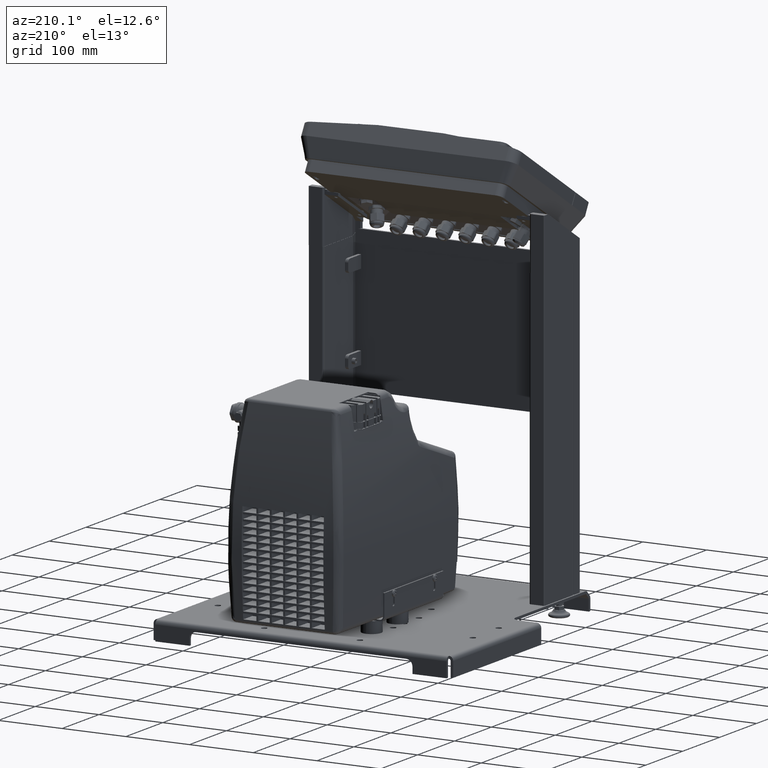
[diagram: clean part render]
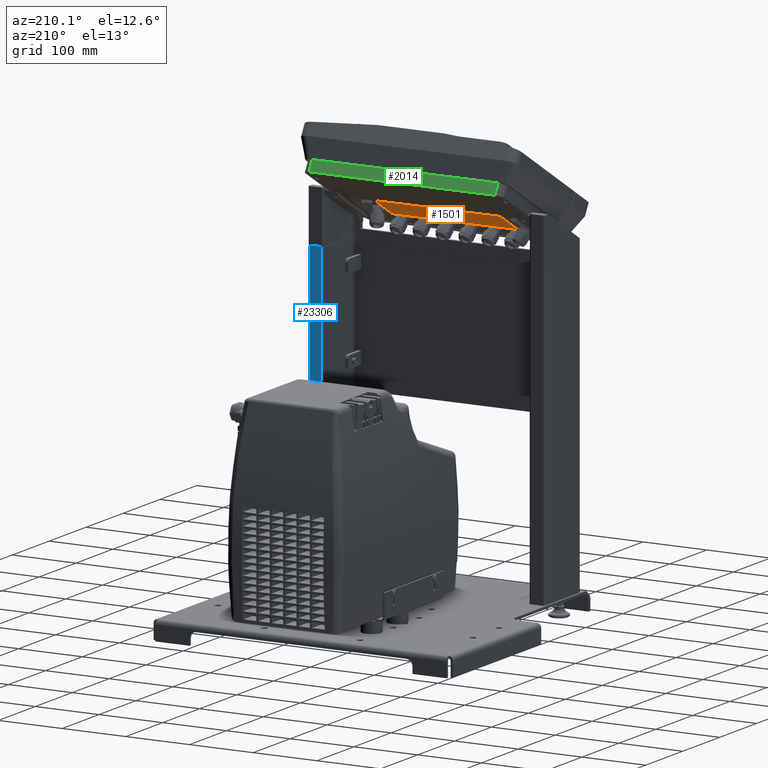
[diagram: same view with three faces highlighted in distinct colors, each labeled with its STEP entity id]
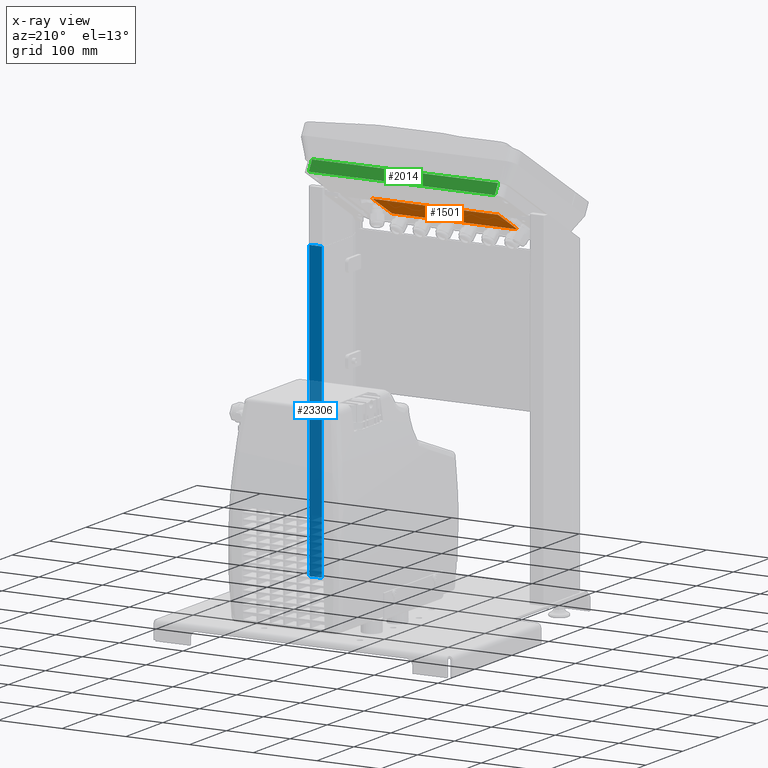
[diagram: x-ray of the same camera — body ghosted, the three highlighted faces saturated]
A machine part, auxiliary view with three faces highlighted in distinct colors.
The next image is the same camera in x-ray (body ghosted, the three faces saturated) — at least one of them is partly hidden behind the body in this view.
Their STEP definitions:

[orange] entity #1501 — the highlighted planar face has unit normal (-0, -0.5, 0.866).
#1412=CARTESIAN_POINT('',(-98.456019271975549,-137.54090868399817,559.35854279548505));
#1413=VERTEX_POINT('',#1412);
#1420=CARTESIAN_POINT('',(-98.456019271975549,-191.23448371863333,528.35854279548482));
#1421=VERTEX_POINT('',#1420);
#1422=CARTESIAN_POINT('',(-98.456019271975549,-191.23448371863333,528.35854279548482));
#1423=DIRECTION('',(1.375244E-015,0.866025403784438,0.500000000000001));
#1424=VECTOR('',#1423,62.000000000000071);
#1425=LINE('',#1422,#1424);
#1426=EDGE_CURVE('',#1421,#1413,#1425,.T.);
#1444=CARTESIAN_POINT('',(98.543980728024451,-191.23448371863356,528.35854279548471));
#1445=VERTEX_POINT('',#1444);
#1446=CARTESIAN_POINT('',(98.543980728024451,-191.23448371863356,528.35854279548471));
#1447=DIRECTION('',(-1.0,0.0,0.0));
#1448=VECTOR('',#1447,197.0);
#1449=LINE('',#1446,#1448);
#1450=EDGE_CURVE('',#1445,#1421,#1449,.T.);
#1468=CARTESIAN_POINT('',(98.543980728024451,-137.54090868399817,559.35854279548505));
#1469=VERTEX_POINT('',#1468);
#1470=CARTESIAN_POINT('',(98.543980728024451,-137.54090868399817,559.35854279548505));
#1471=DIRECTION('',(-4.584147E-016,-0.866025403784438,-0.500000000000001));
#1472=VECTOR('',#1471,62.000000000000327);
#1473=LINE('',#1470,#1472);
#1474=EDGE_CURVE('',#1469,#1445,#1473,.T.);
#1485=CARTESIAN_POINT('',(0.043980728024455,-164.38769620131598,543.85854279548471));
#1486=DIRECTION('',(-2.897450E-016,-0.500000000000001,0.866025403784438));
#1487=DIRECTION('',(-1.0,0.0,0.0));
#1488=AXIS2_PLACEMENT_3D('',#1485,#1486,#1487);
#1489=PLANE('',#1488);
#1490=CARTESIAN_POINT('',(98.543980728024451,-137.54090868399817,559.35854279548505));
#1491=DIRECTION('',(-1.0,0.0,0.0));
#1492=VECTOR('',#1491,197.0);
#1493=LINE('',#1490,#1492);
#1494=EDGE_CURVE('',#1469,#1413,#1493,.T.);
#1495=ORIENTED_EDGE('',*,*,#1494,.F.);
#1496=ORIENTED_EDGE('',*,*,#1474,.T.);
#1497=ORIENTED_EDGE('',*,*,#1450,.T.);
#1498=ORIENTED_EDGE('',*,*,#1426,.T.);
#1499=EDGE_LOOP('',(#1495,#1496,#1497,#1498));
#1500=FACE_OUTER_BOUND('',#1499,.T.);
#1501=ADVANCED_FACE('',(#1500),#1489,.F.);

[blue] entity #23306 — the highlighted face is a freeform B-spline surface patch.
#23267=CARTESIAN_POINT('',(164.00606889100027,-113.7506667319999,29.250074234999943));
#23268=CARTESIAN_POINT('',(164.00606889100027,-113.7506667319999,490.25007423499994));
#23269=CARTESIAN_POINT('',(183.50606889100027,-113.75066673199996,29.250074234999943));
#23270=CARTESIAN_POINT('',(183.50606889100027,-113.75066673199996,490.25007423499994));
#23271=B_SPLINE_SURFACE_WITH_KNOTS('',1,1,((#23267,#23269),(#23268,#23270)),.UNSPECIFIED.,.F.,.F.,.U.,(2,2),(2,2),(0.0,461.0),(0.0,19.5),.UNSPECIFIED.);
#23272=CARTESIAN_POINT('',(164.00606889100027,-113.7506667319999,29.250074235));
#23273=VERTEX_POINT('',#23272);
#23274=CARTESIAN_POINT('',(183.50606889100027,-113.75066673199996,29.250074235));
#23275=VERTEX_POINT('',#23274);
#23276=CARTESIAN_POINT('',(164.00606889100027,-113.7506667319999,29.250074234999943));
#23277=DIRECTION('',(1.0,0.0,0.0));
#23278=VECTOR('',#23277,19.5);
#23279=LINE('',#23276,#23278);
#23280=EDGE_CURVE('',#23273,#23275,#23279,.T.);
#23281=ORIENTED_EDGE('',*,*,#23280,.F.);
#23282=CARTESIAN_POINT('',(164.00606889100027,-113.7506667319999,490.25007423499994));
#23283=VERTEX_POINT('',#23282);
#23284=CARTESIAN_POINT('',(164.00606889100027,-113.7506667319999,490.25007423499994));
#23285=DIRECTION('',(0.0,0.0,-1.0));
#23286=VECTOR('',#23285,460.99999999999994);
#23287=LINE('',#23284,#23286);
#23288=EDGE_CURVE('',#23283,#23273,#23287,.T.);
#23289=ORIENTED_EDGE('',*,*,#23288,.F.);
#23290=CARTESIAN_POINT('',(183.50606889100027,-113.75066673199996,490.25007423499994));
#23291=VERTEX_POINT('',#23290);
#23292=CARTESIAN_POINT('',(164.00606889100027,-113.7506667319999,490.25007423499994));
#23293=DIRECTION('',(1.0,0.0,0.0));
#23294=VECTOR('',#23293,19.5);
#23295=LINE('',#23292,#23294);
#23296=EDGE_CURVE('',#23283,#23291,#23295,.T.);
#23297=ORIENTED_EDGE('',*,*,#23296,.T.);
#23298=CARTESIAN_POINT('',(183.50606889100027,-113.75066673199996,490.25007423499994));
#23299=DIRECTION('',(0.0,0.0,-1.0));
#23300=VECTOR('',#23299,460.99999999999994);
#23301=LINE('',#23298,#23300);
#23302=EDGE_CURVE('',#23291,#23275,#23301,.T.);
#23303=ORIENTED_EDGE('',*,*,#23302,.T.);
#23304=EDGE_LOOP('',(#23281,#23289,#23297,#23303));
#23305=FACE_OUTER_BOUND('',#23304,.T.);
#23306=ADVANCED_FACE('',(#23305),#23271,.T.);

[green] entity #2014 — the highlighted planar face has unit normal (0, 0.866, 0.5).
#1351=CARTESIAN_POINT('',(-145.95601927197532,-47.340292094200777,609.12649198791621));
#1352=VERTEX_POINT('',#1351);
#1360=CARTESIAN_POINT('',(146.04398072802468,-47.340292094200777,609.12649198791621));
#1361=VERTEX_POINT('',#1360);
#1362=CARTESIAN_POINT('',(146.04398072802468,-47.340292094200777,609.12649198791621));
#1363=DIRECTION('',(-1.0,0.0,0.0));
#1364=VECTOR('',#1363,292.0);
#1365=LINE('',#1362,#1364);
#1366=EDGE_CURVE('',#1361,#1352,#1365,.T.);
#1622=CARTESIAN_POINT('',(146.04398072802468,-56.240292094201322,624.54174417527918));
#1623=VERTEX_POINT('',#1622);
#1631=CARTESIAN_POINT('',(-145.95601927197544,-56.240292094200868,624.54174417527918));
#1632=VERTEX_POINT('',#1631);
#1633=CARTESIAN_POINT('',(146.04398072802468,-56.240292094201322,624.54174417527918));
#1634=DIRECTION('',(-1.0,0.0,0.0));
#1635=VECTOR('',#1634,292.00000000000011);
#1636=LINE('',#1633,#1635);
#1637=EDGE_CURVE('',#1623,#1632,#1636,.T.);
#1989=CARTESIAN_POINT('',(-145.95601927197532,-47.340292094200777,609.12649198791621));
#1990=DIRECTION('',(0.0,-0.500000000000002,0.866025403784438));
#1991=VECTOR('',#1990,17.799999999999972);
#1992=LINE('',#1989,#1991);
#1993=EDGE_CURVE('',#1352,#1632,#1992,.T.);
#1998=CARTESIAN_POINT('',(146.04398072802468,-47.340292094200777,609.12649198791621));
#1999=DIRECTION('',(2.141080E-016,0.866025403784438,0.500000000000001));
#2000=DIRECTION('',(-1.0,0.0,0.0));
#2001=AXIS2_PLACEMENT_3D('',#1998,#1999,#2000);
#2002=PLANE('',#2001);
#2003=ORIENTED_EDGE('',*,*,#1366,.T.);
#2004=ORIENTED_EDGE('',*,*,#1993,.T.);
#2005=ORIENTED_EDGE('',*,*,#1637,.F.);
#2006=CARTESIAN_POINT('',(146.04398072802468,-47.340292094200777,609.12649198791621));
#2007=DIRECTION('',(0.0,-0.500000000000001,0.866025403784438));
#2008=VECTOR('',#2007,17.800000000000228);
#2009=LINE('',#2006,#2008);
#2010=EDGE_CURVE('',#1361,#1623,#2009,.T.);
#2011=ORIENTED_EDGE('',*,*,#2010,.F.);
#2012=EDGE_LOOP('',(#2003,#2004,#2005,#2011));
#2013=FACE_OUTER_BOUND('',#2012,.T.);
#2014=ADVANCED_FACE('',(#2013),#2002,.T.);